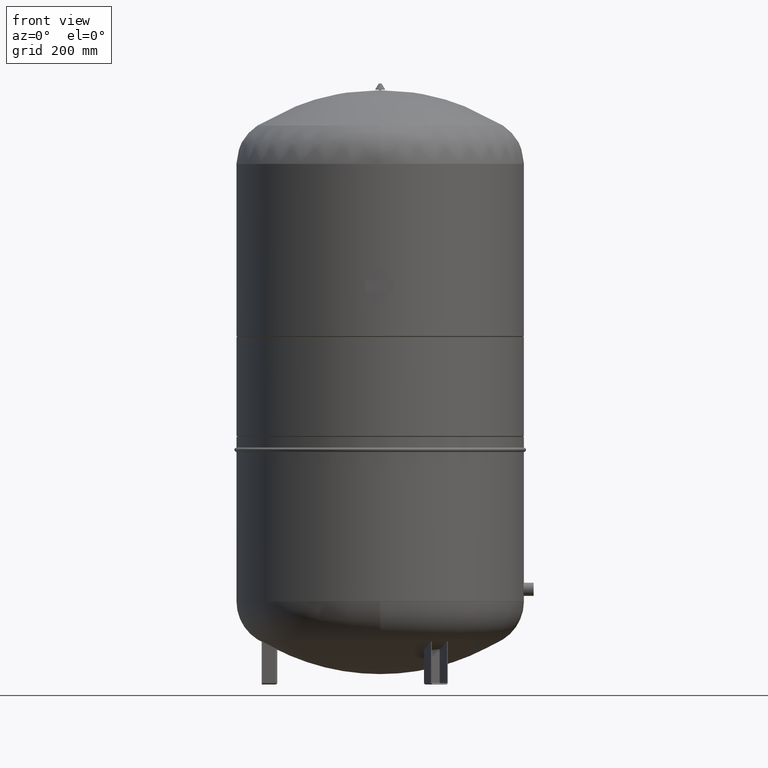
[diagram: clean part render]
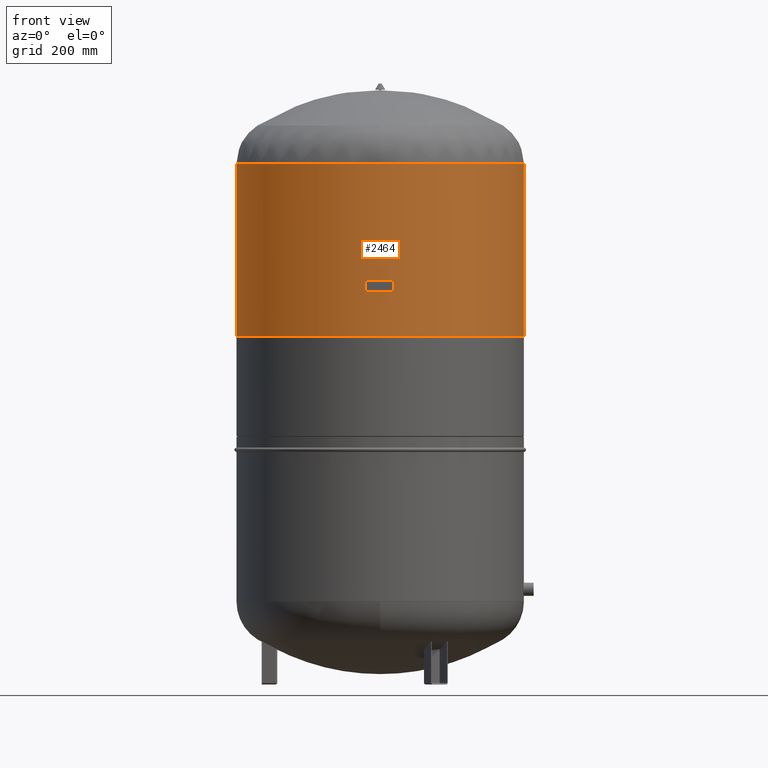
[diagram: same view with one face highlighted and labeled with its STEP entity id]
A machine part, front view. The second image highlights one B-rep face of the part: STEP entity #2464.
In plain terms, the highlighted cylindrical surface (partial cylindrical patch) has radius 370 mm, axis along (-0, 0, 1).
Its self-contained STEP definition (entity closure, byte-faithful):
#2423=CARTESIAN_POINT('',(-5.427058E-014,0.0,1118.949999999999800));
#2424=DIRECTION('',(-1.589415E-016,0.0,1.0));
#2425=DIRECTION('',(1.0,0.0,0.0));
#2426=AXIS2_PLACEMENT_3D('',#2423,#2424,#2425);
#2427=CYLINDRICAL_SURFACE('',#2426,369.999999999999890);
#2428=CARTESIAN_POINT('',(369.999999999999940,0.0,1341.0));
#2429=VERTEX_POINT('',#2428);
#2430=CARTESIAN_POINT('',(369.999999999999660,0.0,896.899999999999980));
#2431=VERTEX_POINT('',#2430);
#2432=CARTESIAN_POINT('',(369.999999999999940,0.0,1341.0));
#2433=DIRECTION('',(0.0,0.0,-1.0));
#2434=VECTOR('',#2433,444.100000000000020);
#2435=LINE('',#2432,#2434);
#2436=EDGE_CURVE('',#2429,#2431,#2435,.T.);
#2437=ORIENTED_EDGE('',*,*,#2436,.F.);
#2438=CARTESIAN_POINT('',(-370.0,-4.531044E-014,1341.0));
#2439=VERTEX_POINT('',#2438);
#2440=CARTESIAN_POINT('',(-8.956355E-014,0.0,1341.0));
#2441=DIRECTION('',(0.0,0.0,1.0));
#2442=DIRECTION('',(1.0,0.0,0.0));
#2443=AXIS2_PLACEMENT_3D('',#2440,#2441,#2442);
#2444=CIRCLE('',#2443,370.0);
#2445=EDGE_CURVE('',#2439,#2429,#2444,.T.);
#2446=ORIENTED_EDGE('',*,*,#2445,.F.);
#2447=CARTESIAN_POINT('',(-369.999999999999600,-4.531044E-014,896.899999999999860));
#2448=VERTEX_POINT('',#2447);
#2449=CARTESIAN_POINT('',(-370.0,-4.531044E-014,1341.0));
#2450=DIRECTION('',(0.0,0.0,-1.0));
#2451=VECTOR('',#2450,444.100000000000140);
#2452=LINE('',#2449,#2451);
#2453=EDGE_CURVE('',#2439,#2448,#2452,.T.);
#2454=ORIENTED_EDGE('',*,*,#2453,.T.);
#2455=CARTESIAN_POINT('',(-1.897762E-014,0.0,896.899999999999860));
#2456=DIRECTION('',(0.0,0.0,1.0));
#2457=DIRECTION('',(1.0,0.0,0.0));
#2458=AXIS2_PLACEMENT_3D('',#2455,#2456,#2457);
#2459=CIRCLE('',#2458,369.999999999999660);
#2460=EDGE_CURVE('',#2448,#2431,#2459,.T.);
#2461=ORIENTED_EDGE('',*,*,#2460,.T.);
#2462=EDGE_LOOP('',(#2437,#2446,#2454,#2461));
#2463=FACE_OUTER_BOUND('',#2462,.T.);
#2464=ADVANCED_FACE('',(#2463),#2427,.T.);